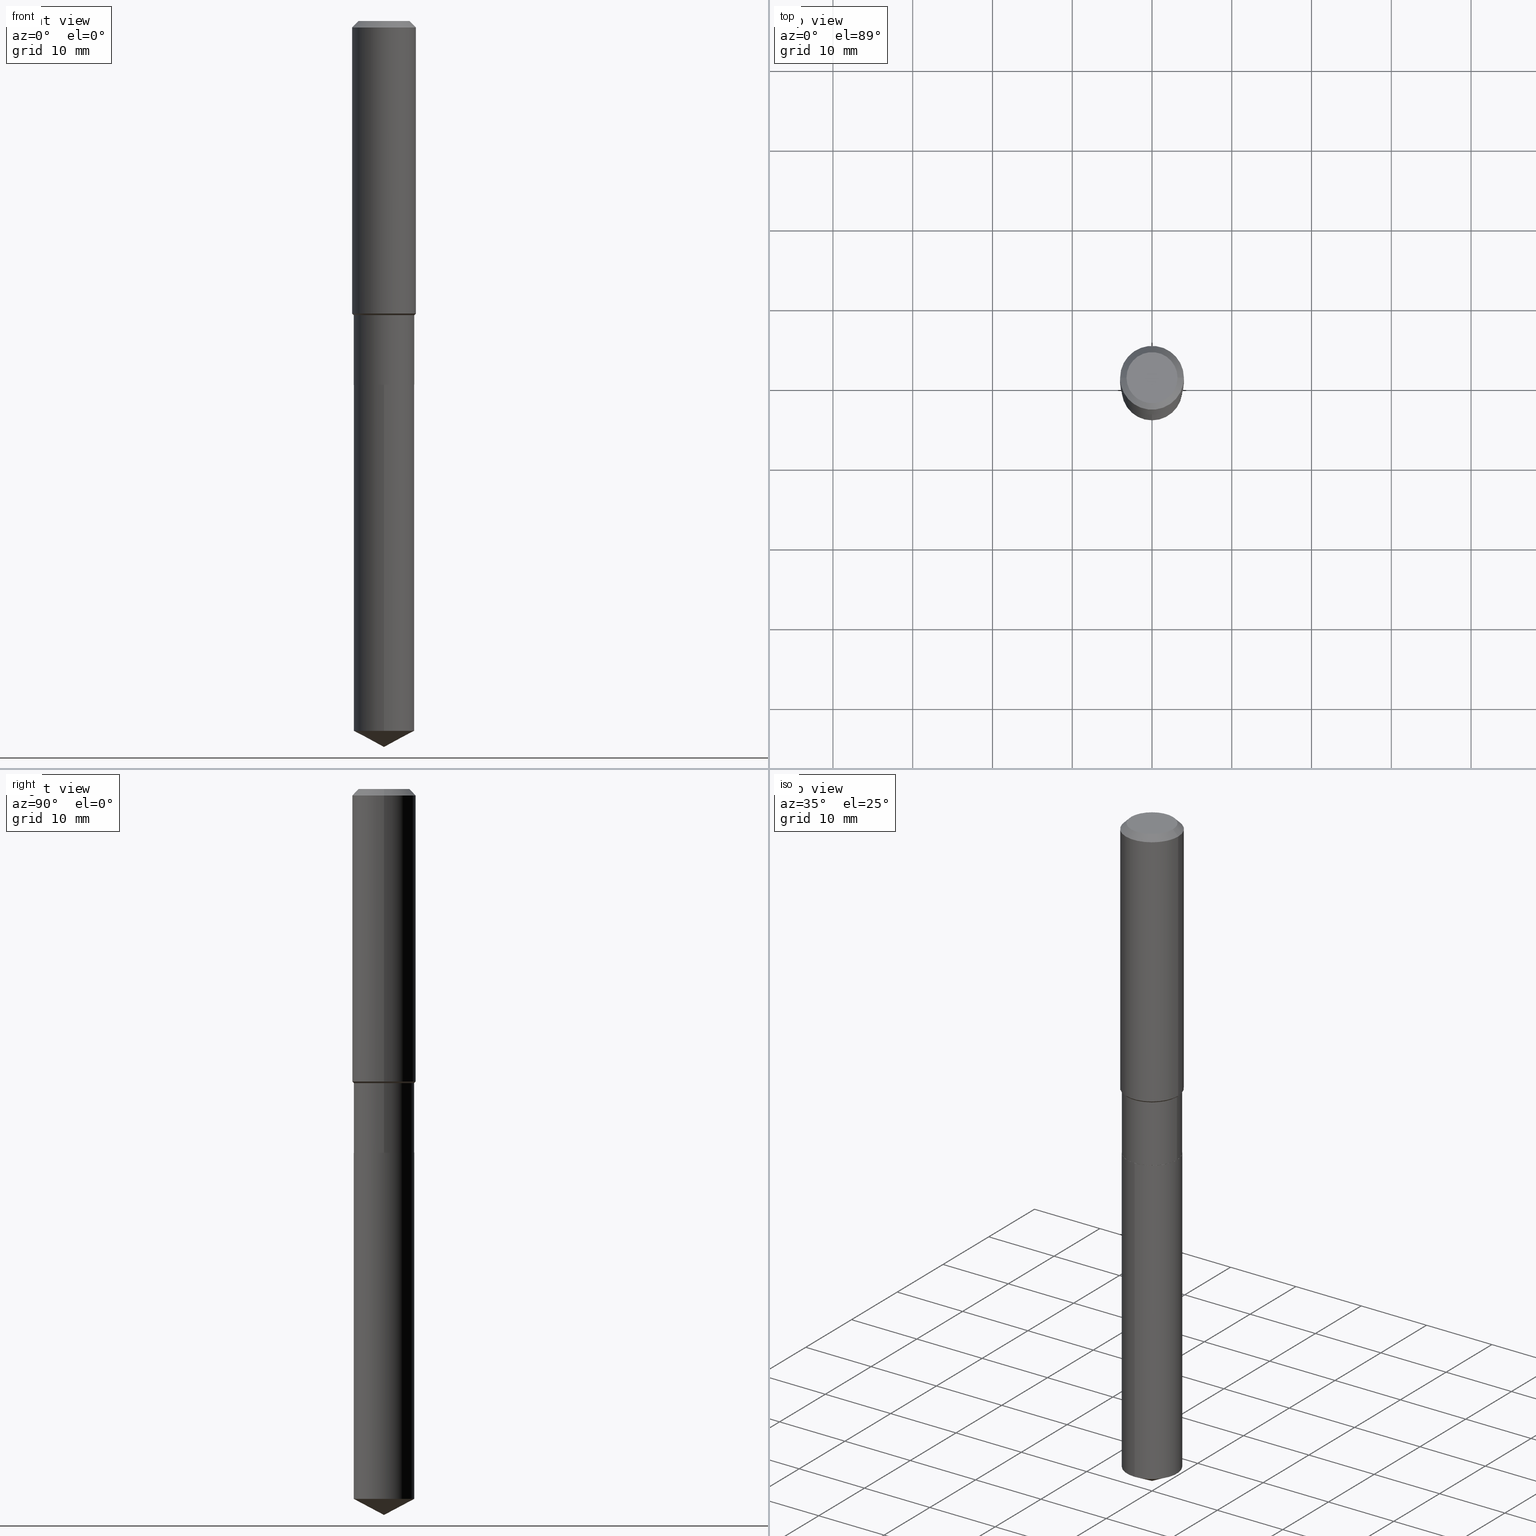
[diagram: canonical four-view strip — front | top / right | iso, engineering-drawing reading convention]
A machine part, canonical four-view strip (front | top / right | iso — engineering-drawing reading convention). The complete STEP part file that produces these views, byte-faithful:
ISO-10303-21;
HEADER;
FILE_DESCRIPTION (( 'STEP AP203' ),
    '1' );
FILE_NAME ('65206.STEP',
    '2024-04-24T21:22:29',
    ( '' ),
    ( '' ),
    'SwSTEP 2.0',
    'SolidWorks 2023',
    '' );
FILE_SCHEMA (( 'CONFIG_CONTROL_DESIGN' ));
ENDSEC;

DATA;
#1 = EDGE_CURVE ( 'NONE', #374, #392, #385, .T. ) ;
#2 = PERSON_AND_ORGANIZATION ( #70, #134 ) ;
#3 = CONICAL_SURFACE ( 'NONE', #340, 74.04434902938376695, 1.082104136236487824 ) ;
#4 = CARTESIAN_POINT ( 'NONE',  ( 0.000000000000000000, 0.000000000000000000, 0.000000000000000000 ) ) ;
#5 = ORIENTED_EDGE ( 'NONE', *, *, #453, .F. ) ;
#6 = VECTOR ( 'NONE', #185, 39.37007874015748143 ) ;
#7 = DIRECTION ( 'NONE',  ( -2.445468806185136597E-29, 3.491481338843145583E-15, 1.000000000000000000 ) ) ;
#8 =( NAMED_UNIT ( * ) SI_UNIT ( $, .STERADIAN. ) SOLID_ANGLE_UNIT ( ) );
#9 = FACE_OUTER_BOUND ( 'NONE', #197, .T. ) ;
#10 = VERTEX_POINT ( 'NONE', #211 ) ;
#11 = CARTESIAN_POINT ( 'NONE',  ( 4.390350147744175670E-29, -6.268256447625099205E-15, -1.795300000000000118 ) ) ;
#12 = VERTEX_POINT ( 'NONE', #420 ) ;
#13 = AXIS2_PLACEMENT_3D ( 'NONE', #109, #160, #396 ) ;
#14 = CARTESIAN_POINT ( 'NONE',  ( 7.703226739483226971E-31, -1.099816621735597538E-16, -0.03150000000000019451 ) ) ;
#15 = EDGE_LOOP ( 'NONE', ( #357, #365, #412, #373 ) ) ;
#16 = CARTESIAN_POINT ( 'NONE',  ( 4.390350147744175670E-29, -6.268256447625099205E-15, -1.795300000000000118 ) ) ;
#17 = CALENDAR_DATE ( 2024, 24, 4 ) ;
#18 = ORIENTED_EDGE ( 'NONE', *, *, #123, .F. ) ;
#19 = FACE_OUTER_BOUND ( 'NONE', #408, .T. ) ;
#20 = EDGE_LOOP ( 'NONE', ( #52, #345, #135, #283 ) ) ;
#21 = CIRCLE ( 'NONE', #332, 0.1575000000000001676 ) ;
#22 = CC_DESIGN_APPROVAL ( #488, ( #257 ) ) ;
#23 = ADVANCED_BREP_SHAPE_REPRESENTATION ( '65206', ( #117, #303, #344 ), #247 ) ;
#24 = DIRECTION ( 'NONE',  ( -2.445468806185136597E-29, 3.491481338843145583E-15, 1.000000000000000000 ) ) ;
#25 = PRODUCT_DEFINITION_SHAPE ( 'NONE', 'NONE',  #223 ) ;
#26 = ADVANCED_FACE ( 'NONE', ( #232 ), #361, .T. ) ;
#27 = PRODUCT ( '65206', '65206', '', ( #460 ) ) ;
#28 = APPROVAL_DATE_TIME ( #260, #40 ) ;
#29 = EDGE_CURVE ( 'NONE', #392, #374, #343, .T. ) ;
#30 = FACE_OUTER_BOUND ( 'NONE', #72, .T. ) ;
#31 = AXIS2_PLACEMENT_3D ( 'NONE', #108, #450, #271 ) ;
#32 = CIRCLE ( 'NONE', #93, 0.1260000000000000009 ) ;
#33 = DIRECTION ( 'NONE',  ( 1.000000000000000000, -6.982962677686262766E-15, 0.000000000000000000 ) ) ;
#34 = CC_DESIGN_PERSON_AND_ORGANIZATION_ASSIGNMENT ( #106, #311, ( #257 ) ) ;
#35 = CARTESIAN_POINT ( 'NONE',  ( 0.000000000000000000, 0.000000000000000000, 0.000000000000000000 ) ) ;
#36 = CIRCLE ( 'NONE', #172, 0.1496000000000000107 ) ;
#37 = ORIENTED_EDGE ( 'NONE', *, *, #29, .T. ) ;
#38 = EDGE_CURVE ( 'NONE', #12, #369, #82, .T. ) ;
#39 = VERTEX_POINT ( 'NONE', #242 ) ;
#40 = APPROVAL ( #398, 'UNSPECIFIED' ) ;
#41 = DIRECTION ( 'NONE',  ( 1.000000000000000000, -6.982962677686267499E-15, 4.876176775795936353E-29 ) ) ;
#42 = FACE_OUTER_BOUND ( 'NONE', #360, .T. ) ;
#43 = VECTOR ( 'NONE', #423, 39.37007874015748143 ) ;
#44 = VECTOR ( 'NONE', #432, 39.37007874015748143 ) ;
#45 = APPROVAL_ROLE ( '' ) ;
#46 = EDGE_CURVE ( 'NONE', #335, #323, #462, .T. ) ;
#47 = CARTESIAN_POINT ( 'NONE',  ( 0.1575000000000000844, -1.099816621735587677E-15, 7.679978421878603638E-30 ) ) ;
#48 = ORIENTED_EDGE ( 'NONE', *, *, #168, .T. ) ;
#49 = EDGE_CURVE ( 'NONE', #119, #156, #36, .T. ) ;
#50 = CARTESIAN_POINT ( 'NONE',  ( 4.389127413341083429E-29, -6.266510706955677702E-15, -1.794800000000000173 ) ) ;
#51 = ORIENTED_EDGE ( 'NONE', *, *, #49, .T. ) ;
#52 = ORIENTED_EDGE ( 'NONE', *, *, #1, .T. ) ;
#53 = VECTOR ( 'NONE', #476, 39.37007874015748143 ) ;
#54 = CIRCLE ( 'NONE', #230, 0.1496000000000000107 ) ;
#55 = CALENDAR_DATE ( 2024, 24, 4 ) ;
#56 = ORIENTED_EDGE ( 'NONE', *, *, #38, .T. ) ;
#57 = ORIENTED_EDGE ( 'NONE', *, *, #397, .F. ) ;
#58 = DIRECTION ( 'NONE',  ( -2.445468806185136597E-29, 3.491481338843145583E-15, 1.000000000000000000 ) ) ;
#59 = DESIGN_CONTEXT ( 'detailed design', #252, 'design' ) ;
#60 = ADVANCED_FACE ( 'NONE', ( #349 ), #390, .T. ) ;
#61 = CONICAL_SURFACE ( 'NONE', #92, 0.1491000000000000103, 0.7853981633975507526 ) ;
#62 = ADVANCED_FACE ( 'NONE', ( #186 ), #61, .T. ) ;
#63 = DIRECTION ( 'NONE',  ( 0.7071067811865452413, -7.319954787623248157E-15, -0.7071067811865497932 ) ) ;
#64 = FACE_OUTER_BOUND ( 'NONE', #20, .T. ) ;
#65 = ADVANCED_FACE ( 'NONE', ( #19 ), #305, .T. ) ;
#66 = CIRCLE ( 'NONE', #459, 0.1496000000000000107 ) ;
#67 = AXIS2_PLACEMENT_3D ( 'NONE', #50, #254, #291 ) ;
#68 = CC_DESIGN_APPROVAL ( #157, ( #223 ) ) ;
#69 = DIRECTION ( 'NONE',  ( -2.445468806185136597E-29, 3.491481338843145583E-15, 1.000000000000000000 ) ) ;
#70 = PERSON ( 'UNSPECIFIED', 'UNSPECIFIED', 'UNSPECIFIED', ('UNSPECIFIED'), ('UNSPECIFIED'), ('UNSPECIFIED') ) ;
#71 = ADVANCED_FACE ( 'NONE', ( #64 ), #393, .T. ) ;
#72 = EDGE_LOOP ( 'NONE', ( #88, #445, #334, #176 ) ) ;
#73 = EDGE_CURVE ( 'NONE', #95, #369, #268, .T. ) ;
#74 = VECTOR ( 'NONE', #219, 39.37007874015748143 ) ;
#75 = DIRECTION ( 'NONE',  ( -2.445468806185136597E-29, 3.491481338843145583E-15, 1.000000000000000000 ) ) ;
#76 = ORIENTED_EDGE ( 'NONE', *, *, #193, .F. ) ;
#77 = DIRECTION ( 'NONE',  ( 1.000000000000000000, -6.982962677686265922E-15, 0.000000000000000000 ) ) ;
#78 = ORIENTED_EDGE ( 'NONE', *, *, #198, .T. ) ;
#79 = ADVANCED_FACE ( 'NONE', ( #132 ), #442, .F. ) ;
#80 = CARTESIAN_POINT ( 'NONE',  ( -1.044651216581821622E-15, -0.1496000000000062835, -1.795299999999999452 ) ) ;
#81 = LINE ( 'NONE', #47, #145 ) ;
#82 = CIRCLE ( 'NONE', #154, 0.1496000000000000107 ) ;
#83 = COORDINATED_UNIVERSAL_TIME_OFFSET ( 5, 0, .BEHIND. ) ;
#84 = ORIENTED_EDGE ( 'NONE', *, *, #448, .T. ) ;
#85 = CARTESIAN_POINT ( 'NONE',  ( -1.044651216581780009E-15, -0.1496000000000122510, -3.503156269023442793 ) ) ;
#86 = ORIENTED_EDGE ( 'NONE', *, *, #431, .T. ) ;
#87 = CARTESIAN_POINT ( 'NONE',  ( 4.390350147744175670E-29, -6.268256447625099205E-15, -1.795300000000000118 ) ) ;
#88 = ORIENTED_EDGE ( 'NONE', *, *, #389, .F. ) ;
#89 = DIRECTION ( 'NONE',  ( -2.445434716319328543E-29, 3.491530157471257192E-15, 1.000000000000000000 ) ) ;
#90 = CIRCLE ( 'NONE', #426, 0.1491000000000000103 ) ;
#91 = ORIENTED_EDGE ( 'NONE', *, *, #453, .T. ) ;
#92 = AXIS2_PLACEMENT_3D ( 'NONE', #99, #227, #138 ) ;
#93 = AXIS2_PLACEMENT_3D ( 'NONE', #203, #284, #377 ) ;
#94 = PERSON_AND_ORGANIZATION ( #70, #134 ) ;
#95 = VERTEX_POINT ( 'NONE', #300 ) ;
#96 = CARTESIAN_POINT ( 'NONE',  ( 3.529545127967007664E-29, -5.039255016352311783E-15, -1.443299999999999805 ) ) ;
#97 = DIRECTION ( 'NONE',  ( -2.445434716319328543E-29, 3.491530157471257586E-15, 1.000000000000000000 ) ) ;
#98 = EDGE_CURVE ( 'NONE', #296, #10, #21, .T. ) ;
#99 = CARTESIAN_POINT ( 'NONE',  ( 4.390350147744175670E-29, -6.268256447625099205E-15, -1.795300000000000118 ) ) ;
#100 = CARTESIAN_POINT ( 'NONE',  ( 1.062971932697195546E-15, 0.1495999999999878260, -3.503156269023444125 ) ) ;
#101 = DIRECTION ( 'NONE',  ( 1.000000000000000000, -6.982962677686266711E-15, 4.876176775795936353E-29 ) ) ;
#102 = DIRECTION ( 'NONE',  ( -2.445468806185136597E-29, 3.491481338843145583E-15, 1.000000000000000000 ) ) ;
#103 = COORDINATED_UNIVERSAL_TIME_OFFSET ( 5, 0, .BEHIND. ) ;
#104 = AXIS2_PLACEMENT_3D ( 'NONE', #147, #256, #215 ) ;
#105 = VECTOR ( 'NONE', #89, 39.37007874015748143 ) ;
#106 = PERSON_AND_ORGANIZATION ( #70, #134 ) ;
#107 = LOCAL_TIME ( 17, 22, 29.00000000000000000, #83 ) ;
#108 = CARTESIAN_POINT ( 'NONE',  ( -4.719860820353100843E-47, 6.738710358733633822E-33, 1.930043355456229866E-18 ) ) ;
#109 = CARTESIAN_POINT ( 'NONE',  ( -8.751563717571329643E-28, 1.249527997721886214E-13, 35.78737874015747877 ) ) ;
#110 = ORIENTED_EDGE ( 'NONE', *, *, #158, .F. ) ;
#111 = EDGE_CURVE ( 'NONE', #369, #12, #356, .T. ) ;
#112 = DIRECTION ( 'NONE',  ( 1.000000000000000000, -6.982962677686267499E-15, 0.000000000000000000 ) ) ;
#113 = AXIS2_PLACEMENT_3D ( 'NONE', #152, #277, #112 ) ;
#114 = CYLINDRICAL_SURFACE ( 'NONE', #280, 0.1496000000000000107 ) ;
#115 = DIRECTION ( 'NONE',  ( -0.7071067811865467956, 7.493145998870351005E-15, 0.7071067811865482389 ) ) ;
#116 = EDGE_CURVE ( 'NONE', #440, #12, #170, .T. ) ;
#117 = MANIFOLD_SOLID_BREP ( 'Body-Move/Copy2[1]', #441 ) ;
#118 = APPROVAL_STATUS ( 'not_yet_approved' ) ;
#119 = VERTEX_POINT ( 'NONE', #245 ) ;
#120 = CARTESIAN_POINT ( 'NONE',  ( -0.1575000000000000011, -1.455513530440777031E-15, -0.03150000000000019451 ) ) ;
#121 = DIRECTION ( 'NONE',  ( -2.445468806185136597E-29, 3.491481338843145583E-15, 1.000000000000000000 ) ) ;
#122 = APPLICATION_PROTOCOL_DEFINITION ( 'international standard', 'config_control_design', 1994, #490 ) ;
#123 = EDGE_CURVE ( 'NONE', #323, #253, #351, .T. ) ;
#124 = DIRECTION ( 'NONE',  ( -2.438088387897960049E-29, 3.491481338843145188E-15, 1.000000000000000000 ) ) ;
#125 = AXIS2_PLACEMENT_3D ( 'NONE', #380, #214, #177 ) ;
#126 = EDGE_LOOP ( 'NONE', ( #255, #371, #207, #438 ) ) ;
#127 = CYLINDRICAL_SURFACE ( 'NONE', #246, 0.1496000000000000107 ) ;
#128 = CARTESIAN_POINT ( 'NONE',  ( -9.439721640706201686E-47, 1.347742071746726764E-32, 3.860086710912459732E-18 ) ) ;
#129 = EDGE_LOOP ( 'NONE', ( #91, #464, #139, #473 ) ) ;
#130 = ORIENTED_EDGE ( 'NONE', *, *, #1, .F. ) ;
#131 = ADVANCED_FACE ( 'NONE', ( #9 ), #465, .F. ) ;
#132 = FACE_OUTER_BOUND ( 'NONE', #355, .T. ) ;
#133 = DIRECTION ( 'NONE',  ( -2.445468806185136597E-29, 3.491481338843145583E-15, 1.000000000000000000 ) ) ;
#134 = ORGANIZATION ( 'UNSPECIFIED', 'UNSPECIFIED', '' ) ;
#135 = ORIENTED_EDGE ( 'NONE', *, *, #187, .F. ) ;
#136 = CIRCLE ( 'NONE', #113, 0.1575000000000001676 ) ;
#137 = AXIS2_PLACEMENT_3D ( 'NONE', #16, #221, #417 ) ;
#138 = DIRECTION ( 'NONE',  ( 1.000000000000000000, -6.982962677686265133E-15, 0.000000000000000000 ) ) ;
#139 = ORIENTED_EDGE ( 'NONE', *, *, #458, .F. ) ;
#140 = ADVANCED_FACE ( 'NONE', ( #159 ), #307, .T. ) ;
#141 = DIRECTION ( 'NONE',  ( 0.000000000000000000, 0.000000000000000000, 1.000000000000000000 ) ) ;
#142 = CARTESIAN_POINT ( 'NONE',  ( 0.1575000000000000011, -1.190510096822576026E-15, -0.03150000000000019451 ) ) ;
#143 = APPROVAL_STATUS ( 'not_yet_approved' ) ;
#144 = AXIS2_PLACEMENT_3D ( 'NONE', #35, #196, #263 ) ;
#145 = VECTOR ( 'NONE', #204, 39.37007874015748143 ) ;
#146 = CARTESIAN_POINT ( 'NONE',  ( 0.000000000000000000, 0.000000000000000000, 0.000000000000000000 ) ) ;
#147 = CARTESIAN_POINT ( 'NONE',  ( 7.703226739483226971E-31, -1.099816621735597538E-16, -0.03150000000000019451 ) ) ;
#148 = CARTESIAN_POINT ( 'NONE',  ( -0.1575000000000000844, 1.119104808822158392E-15, -7.747322767151481189E-30 ) ) ;
#149 = PERSON_AND_ORGANIZATION ( #70, #134 ) ;
#150 = CC_DESIGN_PERSON_AND_ORGANIZATION_ASSIGNMENT ( #2, #312, ( #401 ) ) ;
#151 = FACE_OUTER_BOUND ( 'NONE', #126, .T. ) ;
#152 = CARTESIAN_POINT ( 'NONE',  ( 3.529545127967007664E-29, -5.039255016352311783E-15, -1.443299999999999805 ) ) ;
#153 = FACE_OUTER_BOUND ( 'NONE', #129, .T. ) ;
#154 = AXIS2_PLACEMENT_3D ( 'NONE', #286, #7, #250 ) ;
#155 = CALENDAR_DATE ( 2024, 24, 4 ) ;
#156 = VERTEX_POINT ( 'NONE', #388 ) ;
#157 = APPROVAL ( #118, 'UNSPECIFIED' ) ;
#158 = EDGE_CURVE ( 'NONE', #392, #296, #456, .T. ) ;
#159 = FACE_OUTER_BOUND ( 'NONE', #425, .T. ) ;
#160 = DIRECTION ( 'NONE',  ( -2.445434716319328543E-29, 3.491530157471257586E-15, 1.000000000000000000 ) ) ;
#161 = VECTOR ( 'NONE', #63, 39.37007874015748143 ) ;
#162 = AXIS2_PLACEMENT_3D ( 'NONE', #11, #124, #435 ) ;
#163 = AXIS2_PLACEMENT_3D ( 'NONE', #463, #121, #446 ) ;
#164 = PRODUCT_RELATED_PRODUCT_CATEGORY ( 'detail', '', ( #27 ) ) ;
#165 = DIRECTION ( 'NONE',  ( -6.982962677686265922E-15, -1.000000000000000000, 3.652203200085913145E-15 ) ) ;
#166 = ORIENTED_EDGE ( 'NONE', *, *, #217, .T. ) ;
#167 = DIRECTION ( 'NONE',  ( -2.445468806185136877E-29, 3.491481338843145188E-15, 1.000000000000000000 ) ) ;
#168 = EDGE_CURVE ( 'NONE', #12, #392, #282, .T. ) ;
#169 = VERTEX_POINT ( 'NONE', #120 ) ;
#170 = LINE ( 'NONE', #367, #44 ) ;
#171 = ORIENTED_EDGE ( 'NONE', *, *, #266, .T. ) ;
#172 = AXIS2_PLACEMENT_3D ( 'NONE', #325, #235, #190 ) ;
#173 = ORIENTED_EDGE ( 'NONE', *, *, #29, .F. ) ;
#174 = ORIENTED_EDGE ( 'NONE', *, *, #73, .F. ) ;
#175 = DATE_AND_TIME ( #17, #315 ) ;
#176 = ORIENTED_EDGE ( 'NONE', *, *, #448, .F. ) ;
#177 = DIRECTION ( 'NONE',  ( 1.000000000000000000, -6.982962677686262766E-15, 0.000000000000000000 ) ) ;
#178 = CARTESIAN_POINT ( 'NONE',  ( 1.062971932697153933E-15, 0.1495999999999937657, -1.795300000000000562 ) ) ;
#179 = PERSON_AND_ORGANIZATION ( #70, #134 ) ;
#180 = LOCAL_TIME ( 17, 22, 29.00000000000000000, #477 ) ;
#181 = ORIENTED_EDGE ( 'NONE', *, *, #279, .F. ) ;
#182 = CIRCLE ( 'NONE', #224, 0.1575000000000000011 ) ;
#183 = ADVANCED_FACE ( 'NONE', ( #237 ), #422, .T. ) ;
#184 = PERSON_AND_ORGANIZATION_ROLE ( 'design_owner' ) ;
#185 = DIRECTION ( 'NONE',  ( -2.445468806185136877E-29, 3.491481338843145188E-15, 1.000000000000000000 ) ) ;
#186 = FACE_OUTER_BOUND ( 'NONE', #295, .T. ) ;
#187 = EDGE_CURVE ( 'NONE', #10, #296, #136, .T. ) ;
#188 = AXIS2_PLACEMENT_3D ( 'NONE', #318, #234, #424 ) ;
#189 = ADVANCED_FACE ( 'NONE', ( #42 ), #200, .F. ) ;
#190 = DIRECTION ( 'NONE',  ( -6.982962677686265922E-15, -1.000000000000000000, 3.652203200085913145E-15 ) ) ;
#191 = CALENDAR_DATE ( 2024, 24, 4 ) ;
#192 = EDGE_LOOP ( 'NONE', ( #181, #319, #171, #330 ) ) ;
#193 = EDGE_CURVE ( 'NONE', #335, #253, #274, .T. ) ;
#194 = CARTESIAN_POINT ( 'NONE',  ( -0.1495999999999999830, -4.003865786232063558E-15, -1.451200000000000045 ) ) ;
#195 = VECTOR ( 'NONE', #115, 39.37007874015748143 ) ;
#196 = DIRECTION ( 'NONE',  ( -2.445468806185136597E-29, 3.491481338843145583E-15, 1.000000000000000000 ) ) ;
#197 = EDGE_LOOP ( 'NONE', ( #212, #414 ) ) ;
#198 = EDGE_CURVE ( 'NONE', #374, #10, #275, .T. ) ;
#199 = CARTESIAN_POINT ( 'NONE',  ( -0.1575000000000000011, 9.898349595620272334E-16, -0.03150000000000019451 ) ) ;
#200 = PLANE ( 'NONE',  #31 ) ;
#201 = CC_DESIGN_APPROVAL ( #40, ( #401 ) ) ;
#202 = CARTESIAN_POINT ( 'NONE',  ( 7.703226739483226971E-31, -1.099816621735597538E-16, -0.03150000000000019451 ) ) ;
#203 = CARTESIAN_POINT ( 'NONE',  ( -9.439721640706201686E-47, 1.347742071746726764E-32, 3.860086710912459732E-18 ) ) ;
#204 = DIRECTION ( 'NONE',  ( -2.445468806185136877E-29, 3.491481338843145188E-15, 1.000000000000000000 ) ) ;
#205 = ORIENTED_EDGE ( 'NONE', *, *, #397, .T. ) ;
#206 = CARTESIAN_POINT ( 'NONE',  ( 0.1495999999999999830, -1.044651216581865404E-15, 7.294760456590720327E-30 ) ) ;
#207 = ORIENTED_EDGE ( 'NONE', *, *, #304, .F. ) ;
#208 = CARTESIAN_POINT ( 'NONE',  ( 8.566801158497707259E-29, -1.223128811554679691E-14, -3.503156269023443237 ) ) ;
#209 = AXIS2_PLACEMENT_3D ( 'NONE', #410, #475, #294 ) ;
#210 = VECTOR ( 'NONE', #430, 39.37007874015748143 ) ;
#211 = CARTESIAN_POINT ( 'NONE',  ( 0.1575000000000001676, -6.139071638087900053E-15, -1.443299999999999805 ) ) ;
#212 = ORIENTED_EDGE ( 'NONE', *, *, #352, .F. ) ;
#213 = CARTESIAN_POINT ( 'NONE',  ( -0.1491000000000000103, -5.206188001432678554E-15, -1.795300000000000118 ) ) ;
#214 = DIRECTION ( 'NONE',  ( -2.445468806185136597E-29, 3.491481338843145583E-15, 1.000000000000000000 ) ) ;
#215 = DIRECTION ( 'NONE',  ( -1.000000000000000000, 6.982962677686265922E-15, 0.000000000000000000 ) ) ;
#216 = CARTESIAN_POINT ( 'NONE',  ( 0.1260000000000000009, -1.027466422270894443E-15, 3.860086710919128072E-18 ) ) ;
#217 = EDGE_CURVE ( 'NONE', #10, #338, #81, .T. ) ;
#218 = APPLICATION_PROTOCOL_DEFINITION ( 'international standard', 'config_control_design', 1994, #252 ) ;
#219 = DIRECTION ( 'NONE',  ( 0.7071067811865467956, -2.468850131082249172E-15, 0.7071067811865482389 ) ) ;
#220 = EDGE_LOOP ( 'NONE', ( #461, #484, #18 ) ) ;
#221 = DIRECTION ( 'NONE',  ( -2.445468806185136597E-29, 3.491481338843145583E-15, 1.000000000000000000 ) ) ;
#222 = ORIENTED_EDGE ( 'NONE', *, *, #111, .F. ) ;
#223 = PRODUCT_DEFINITION ( 'UNKNOWN', '', #401, #59 ) ;
#224 = AXIS2_PLACEMENT_3D ( 'NONE', #14, #69, #236 ) ;
#225 = CARTESIAN_POINT ( 'NONE',  ( 4.390350147744175670E-29, -6.268256447625099205E-15, -1.795300000000000118 ) ) ;
#226 = DIRECTION ( 'NONE',  ( 1.000000000000000000, -6.982962677686265133E-15, 0.000000000000000000 ) ) ;
#227 = DIRECTION ( 'NONE',  ( -2.445468806185136597E-29, 3.491481338843145583E-15, 1.000000000000000000 ) ) ;
#228 = CARTESIAN_POINT ( 'NONE',  ( 0.1496000000000000107, -7.311161923537544091E-15, -1.794800000000000173 ) ) ;
#229 = DIRECTION ( 'NONE',  ( -6.982962677686265922E-15, -1.000000000000000000, 3.541896320645549825E-15 ) ) ;
#230 = AXIS2_PLACEMENT_3D ( 'NONE', #301, #483, #165 ) ;
#231 = CIRCLE ( 'NONE', #321, 0.1575000000000000011 ) ;
#232 = FACE_OUTER_BOUND ( 'NONE', #15, .T. ) ;
#233 = DATE_AND_TIME ( #191, #244 ) ;
#234 = DIRECTION ( 'NONE',  ( -2.445468806185136597E-29, 3.491481338843145583E-15, 1.000000000000000000 ) ) ;
#235 = DIRECTION ( 'NONE',  ( -2.445434716319328543E-29, 3.491530157471257586E-15, 1.000000000000000000 ) ) ;
#236 = DIRECTION ( 'NONE',  ( 1.000000000000000000, -6.982962677686265922E-15, 0.000000000000000000 ) ) ;
#237 = FACE_OUTER_BOUND ( 'NONE', #292, .T. ) ;
#238 = VECTOR ( 'NONE', #391, 39.37007874015748854 ) ;
#239 =( CONVERSION_BASED_UNIT ( 'INCH', #262 ) LENGTH_UNIT ( ) NAMED_UNIT ( #269 ) );
#240 = ORIENTED_EDGE ( 'NONE', *, *, #486, .T. ) ;
#241 = ORIENTED_EDGE ( 'NONE', *, *, #116, .T. ) ;
#242 = CARTESIAN_POINT ( 'NONE',  ( -0.1260000000000000009, 9.348441284752484904E-16, 3.860086710906114178E-18 ) ) ;
#243 = PERSON_AND_ORGANIZATION ( #70, #134 ) ;
#244 = LOCAL_TIME ( 17, 22, 29.00000000000000000, #103 ) ;
#245 = CARTESIAN_POINT ( 'NONE',  ( 1.062971932697195743E-15, 0.1495999999999937102, -1.795300000000000562 ) ) ;
#246 = AXIS2_PLACEMENT_3D ( 'NONE', #87, #97, #411 ) ;
#247 =( GEOMETRIC_REPRESENTATION_CONTEXT ( 3 ) GLOBAL_UNCERTAINTY_ASSIGNED_CONTEXT ( ( #339 ) ) GLOBAL_UNIT_ASSIGNED_CONTEXT ( ( #239, #359, #8 ) ) REPRESENTATION_CONTEXT ( 'NONE', 'WORKASPACE' ) );
#248 = CYLINDRICAL_SURFACE ( 'NONE', #273, 0.1575000000000000844 ) ;
#249 = ORIENTED_EDGE ( 'NONE', *, *, #168, .F. ) ;
#250 = DIRECTION ( 'NONE',  ( 1.000000000000000000, -6.982962677686268288E-15, 0.000000000000000000 ) ) ;
#251 = CC_DESIGN_DATE_AND_TIME_ASSIGNMENT ( #175, #337, ( #223 ) ) ;
#252 = APPLICATION_CONTEXT ( 'configuration controlled 3d designs of mechanical parts and assemblies' ) ;
#253 = VERTEX_POINT ( 'NONE', #85 ) ;
#254 = DIRECTION ( 'NONE',  ( -2.445468806185136597E-29, 3.491481338843145583E-15, 1.000000000000000000 ) ) ;
#255 = ORIENTED_EDGE ( 'NONE', *, *, #187, .T. ) ;
#256 = DIRECTION ( 'NONE',  ( 2.445468806185136597E-29, -3.491481338843145583E-15, -1.000000000000000000 ) ) ;
#257 = SECURITY_CLASSIFICATION ( '', '', #418 ) ;
#258 = ORIENTED_EDGE ( 'NONE', *, *, #389, .T. ) ;
#259 = CARTESIAN_POINT ( 'NONE',  ( 4.390350147744175670E-29, -6.268256447625099205E-15, -1.795300000000000118 ) ) ;
#260 = DATE_AND_TIME ( #298, #180 ) ;
#261 = ORIENTED_EDGE ( 'NONE', *, *, #431, .F. ) ;
#262 = LENGTH_MEASURE_WITH_UNIT ( LENGTH_MEASURE( 0.02539999999999999897 ), #327 );
#263 = DIRECTION ( 'NONE',  ( 1.000000000000000000, -6.982962677686266711E-15, 4.876176775795936353E-29 ) ) ;
#264 = PERSON_AND_ORGANIZATION ( #70, #134 ) ;
#265 = AXIS2_PLACEMENT_3D ( 'NONE', #259, #341, #481 ) ;
#266 = EDGE_CURVE ( 'NONE', #253, #156, #406, .T. ) ;
#267 = DIRECTION ( 'NONE',  ( -2.445434716319328543E-29, 3.491530157471257586E-15, 1.000000000000000000 ) ) ;
#268 = LINE ( 'NONE', #336, #53 ) ;
#269 = DIMENSIONAL_EXPONENTS ( 1.000000000000000000, 0.000000000000000000, 0.000000000000000000, 0.000000000000000000, 0.000000000000000000, 0.000000000000000000, 0.000000000000000000 ) ;
#270 = PERSON_AND_ORGANIZATION_ROLE ( 'design_supplier' ) ;
#271 = DIRECTION ( 'NONE',  ( -1.000000000000000000, 6.982962677686265922E-15, -4.876176775795935793E-29 ) ) ;
#272 = CC_DESIGN_SECURITY_CLASSIFICATION ( #257, ( #401 ) ) ;
#273 = AXIS2_PLACEMENT_3D ( 'NONE', #395, #133, #41 ) ;
#274 = LINE ( 'NONE', #387, #238 ) ;
#275 = LINE ( 'NONE', #278, #74 ) ;
#276 = VERTEX_POINT ( 'NONE', #216 ) ;
#277 = DIRECTION ( 'NONE',  ( -2.445468806185136597E-29, 3.491481338843145583E-15, 1.000000000000000000 ) ) ;
#278 = CARTESIAN_POINT ( 'NONE',  ( 0.1495999999999999830, -6.111488935511037930E-15, -1.451200000000000045 ) ) ;
#279 = EDGE_CURVE ( 'NONE', #323, #119, #471, .T. ) ;
#280 = AXIS2_PLACEMENT_3D ( 'NONE', #485, #403, #447 ) ;
#281 = CC_DESIGN_PERSON_AND_ORGANIZATION_ASSIGNMENT ( #94, #347, ( #223 ) ) ;
#282 = LINE ( 'NONE', #353, #457 ) ;
#283 = ORIENTED_EDGE ( 'NONE', *, *, #198, .F. ) ;
#284 = DIRECTION ( 'NONE',  ( -2.445468806185136597E-29, 3.491481338843145583E-15, 1.000000000000000000 ) ) ;
#285 = ADVANCED_FACE ( 'NONE', ( #329 ), #127, .T. ) ;
#286 = CARTESIAN_POINT ( 'NONE',  ( 4.389127413341083429E-29, -6.266510706955677702E-15, -1.794800000000000173 ) ) ;
#287 = DIRECTION ( 'NONE',  ( -2.445468806185136597E-29, 3.491481338843145583E-15, 1.000000000000000000 ) ) ;
#288 = DIRECTION ( 'NONE',  ( 2.445468806185136597E-29, -3.491481338843145583E-15, -1.000000000000000000 ) ) ;
#289 = APPROVAL_DATE_TIME ( #364, #157 ) ;
#290 = CC_DESIGN_DATE_AND_TIME_ASSIGNMENT ( #354, #350, ( #257 ) ) ;
#291 = DIRECTION ( 'NONE',  ( 1.000000000000000000, -6.982962677686268288E-15, 0.000000000000000000 ) ) ;
#292 = EDGE_LOOP ( 'NONE', ( #76, #468, #5 ) ) ;
#293 = DIRECTION ( 'NONE',  ( -6.982962677686266711E-15, -1.000000000000000000, 3.652203200085913145E-15 ) ) ;
#294 = DIRECTION ( 'NONE',  ( 1.000000000000000000, -6.982962677686265133E-15, 0.000000000000000000 ) ) ;
#295 = EDGE_LOOP ( 'NONE', ( #299, #241, #222, #174 ) ) ;
#296 = VERTEX_POINT ( 'NONE', #416 ) ;
#297 = CIRCLE ( 'NONE', #382, 0.1260000000000000009 ) ;
#298 = CALENDAR_DATE ( 2024, 24, 4 ) ;
#299 = ORIENTED_EDGE ( 'NONE', *, *, #352, .T. ) ;
#300 = CARTESIAN_POINT ( 'NONE',  ( 0.1491000000000000103, -7.309416182868121799E-15, -1.795300000000000118 ) ) ;
#301 = CARTESIAN_POINT ( 'NONE',  ( 4.390350147744175670E-29, -6.268256447625099205E-15, -1.795300000000000118 ) ) ;
#302 = FACE_OUTER_BOUND ( 'NONE', #407, .T. ) ;
#303 = MANIFOLD_SOLID_BREP ( 'Body-Move/Copy2[2]', #376 ) ;
#304 = EDGE_CURVE ( 'NONE', #338, #169, #182, .T. ) ;
#305 = CYLINDRICAL_SURFACE ( 'NONE', #316, 0.1495999999999999830 ) ;
#306 = APPROVAL_DATE_TIME ( #233, #488 ) ;
#307 = CONICAL_SURFACE ( 'NONE', #188, 0.1495999999999999830, 0.7853981633974472798 ) ;
#308 = CARTESIAN_POINT ( 'NONE',  ( -8.751563717571329643E-28, 1.249527997721886214E-13, 35.78737874015747877 ) ) ;
#309 = LINE ( 'NONE', #142, #161 ) ;
#310 = DIRECTION ( 'NONE',  ( -2.445468806185136597E-29, 3.491481338843145583E-15, 1.000000000000000000 ) ) ;
#311 = PERSON_AND_ORGANIZATION_ROLE ( 'classification_officer' ) ;
#312 = PERSON_AND_ORGANIZATION_ROLE ( 'creator' ) ;
#313 = EDGE_LOOP ( 'NONE', ( #402, #57, #84, #240 ) ) ;
#314 = ADVANCED_FACE ( 'NONE', ( #151 ), #429, .T. ) ;
#315 = LOCAL_TIME ( 17, 22, 29.00000000000000000, #433 ) ;
#316 = AXIS2_PLACEMENT_3D ( 'NONE', #146, #310, #101 ) ;
#317 = APPROVAL_PERSON_ORGANIZATION ( #264, #488, #381 ) ;
#318 = CARTESIAN_POINT ( 'NONE',  ( 3.548864331535870340E-29, -5.066837718929173118E-15, -1.451200000000000045 ) ) ;
#319 = ORIENTED_EDGE ( 'NONE', *, *, #123, .T. ) ;
#320 = VECTOR ( 'NONE', #482, 39.37007874015748143 ) ;
#321 = AXIS2_PLACEMENT_3D ( 'NONE', #202, #24, #77 ) ;
#322 = DIRECTION ( 'NONE',  ( 1.000000000000000000, 0.000000000000000000, 0.000000000000000000 ) ) ;
#323 = VERTEX_POINT ( 'NONE', #100 ) ;
#324 = DIRECTION ( 'NONE',  ( 1.000000000000000000, -6.982962677686267499E-15, 0.000000000000000000 ) ) ;
#325 = CARTESIAN_POINT ( 'NONE',  ( 4.390350147744175670E-29, -6.268256447625099205E-15, -1.795300000000000118 ) ) ;
#326 = FACE_OUTER_BOUND ( 'NONE', #313, .T. ) ;
#327 =( LENGTH_UNIT ( ) NAMED_UNIT ( * ) SI_UNIT ( $, .METRE. ) );
#328 = ADVANCED_FACE ( 'NONE', ( #378 ), #3, .T. ) ;
#329 = FACE_OUTER_BOUND ( 'NONE', #192, .T. ) ;
#330 = ORIENTED_EDGE ( 'NONE', *, *, #49, .F. ) ;
#331 = DIRECTION ( 'NONE',  ( 6.273719981627770021E-15, 0.8829475928589302081, 0.4694715627858845886 ) ) ;
#332 = AXIS2_PLACEMENT_3D ( 'NONE', #96, #415, #324 ) ;
#333 = CARTESIAN_POINT ( 'NONE',  ( 7.703226739483226971E-31, -1.099816621735597538E-16, -0.03150000000000019451 ) ) ;
#334 = ORIENTED_EDGE ( 'NONE', *, *, #304, .T. ) ;
#335 = VERTEX_POINT ( 'NONE', #421 ) ;
#336 = CARTESIAN_POINT ( 'NONE',  ( 0.1491000000000000103, -7.309416182868121799E-15, -1.795300000000000118 ) ) ;
#337 = DATE_TIME_ROLE ( 'creation_date' ) ;
#338 = VERTEX_POINT ( 'NONE', #427 ) ;
#339 = UNCERTAINTY_MEASURE_WITH_UNIT (LENGTH_MEASURE( 1.000000000000000082E-05 ), #239, 'distance_accuracy_value', 'NONE');
#340 = AXIS2_PLACEMENT_3D ( 'NONE', #308, #267, #229 ) ;
#341 = DIRECTION ( 'NONE',  ( 2.445434716319328263E-29, -3.491530157471257192E-15, -1.000000000000000000 ) ) ;
#342 = APPROVAL_ROLE ( '' ) ;
#343 = CIRCLE ( 'NONE', #419, 0.1495999999999999830 ) ;
#344 = AXIS2_PLACEMENT_3D ( 'NONE', #4, #141, #322 ) ;
#345 = ORIENTED_EDGE ( 'NONE', *, *, #158, .T. ) ;
#346 = EDGE_CURVE ( 'NONE', #440, #95, #479, .T. ) ;
#347 = PERSON_AND_ORGANIZATION_ROLE ( 'creator' ) ;
#348 = CARTESIAN_POINT ( 'NONE',  ( 0.1495999999999999830, -6.111488935511037930E-15, -1.451200000000000045 ) ) ;
#349 = FACE_OUTER_BOUND ( 'NONE', #437, .T. ) ;
#350 = DATE_TIME_ROLE ( 'classification_date' ) ;
#351 = CIRCLE ( 'NONE', #409, 0.1496000000000000107 ) ;
#352 = EDGE_CURVE ( 'NONE', #95, #440, #90, .T. ) ;
#353 = CARTESIAN_POINT ( 'NONE',  ( -0.1495999999999999830, 1.062971932697109757E-15, -7.358726895021338760E-30 ) ) ;
#354 = DATE_AND_TIME ( #155, #451 ) ;
#355 = EDGE_LOOP ( 'NONE', ( #478, #51 ) ) ;
#356 = CIRCLE ( 'NONE', #67, 0.1496000000000000107 ) ;
#357 = ORIENTED_EDGE ( 'NONE', *, *, #116, .F. ) ;
#358 = CARTESIAN_POINT ( 'NONE',  ( 3.548864331535870340E-29, -5.066837718929173118E-15, -1.451200000000000045 ) ) ;
#359 =( NAMED_UNIT ( * ) PLANE_ANGLE_UNIT ( ) SI_UNIT ( $, .RADIAN. ) );
#360 = EDGE_LOOP ( 'NONE', ( #205, #258 ) ) ;
#361 = CONICAL_SURFACE ( 'NONE', #209, 0.1491000000000000103, 0.7853981633975507526 ) ;
#362 = APPROVAL_PERSON_ORGANIZATION ( #243, #40, #45 ) ;
#363 = EDGE_CURVE ( 'NONE', #296, #169, #379, .T. ) ;
#364 = DATE_AND_TIME ( #55, #107 ) ;
#365 = ORIENTED_EDGE ( 'NONE', *, *, #346, .T. ) ;
#366 = EDGE_CURVE ( 'NONE', #276, #338, #309, .T. ) ;
#367 = CARTESIAN_POINT ( 'NONE',  ( -0.1491000000000000103, -5.208837228606789755E-15, -1.795300000000000118 ) ) ;
#368 = ORIENTED_EDGE ( 'NONE', *, *, #111, .T. ) ;
#369 = VERTEX_POINT ( 'NONE', #228 ) ;
#370 = DIRECTION ( 'NONE',  ( -1.000000000000000000, 6.982962677686265922E-15, 0.000000000000000000 ) ) ;
#371 = ORIENTED_EDGE ( 'NONE', *, *, #363, .T. ) ;
#372 = DIRECTION ( 'NONE',  ( -2.445434716319328543E-29, 3.491530157471257586E-15, 1.000000000000000000 ) ) ;
#373 = ORIENTED_EDGE ( 'NONE', *, *, #38, .F. ) ;
#374 = VERTEX_POINT ( 'NONE', #348 ) ;
#375 = CC_DESIGN_PERSON_AND_ORGANIZATION_ASSIGNMENT ( #487, #184, ( #27 ) ) ;
#376 = CLOSED_SHELL ( 'NONE', ( #62, #428, #314, #71, #65, #60, #140, #474, #383, #189, #131, #26 ) ) ;
#377 = DIRECTION ( 'NONE',  ( 1.000000000000000000, -6.982962677686265922E-15, 4.876281427513067258E-29 ) ) ;
#378 = FACE_OUTER_BOUND ( 'NONE', #220, .T. ) ;
#379 = LINE ( 'NONE', #148, #6 ) ;
#380 = CARTESIAN_POINT ( 'NONE',  ( 3.548864331535870340E-29, -5.066837718929173118E-15, -1.451200000000000045 ) ) ;
#381 = APPROVAL_ROLE ( '' ) ;
#382 = AXIS2_PLACEMENT_3D ( 'NONE', #128, #58, #469 ) ;
#383 = ADVANCED_FACE ( 'NONE', ( #326 ), #489, .T. ) ;
#384 = SHAPE_DEFINITION_REPRESENTATION ( #25, #23 ) ;
#385 = CIRCLE ( 'NONE', #470, 0.1495999999999999830 ) ;
#386 = APPROVAL_PERSON_ORGANIZATION ( #179, #157, #342 ) ;
#387 = CARTESIAN_POINT ( 'NONE',  ( 8.761258958157257730E-29, -1.250910509517227415E-14, -3.582699999999999996 ) ) ;
#388 = CARTESIAN_POINT ( 'NONE',  ( -1.044651216581821425E-15, -0.1496000000000062835, -1.795299999999999452 ) ) ;
#389 = EDGE_CURVE ( 'NONE', #276, #39, #297, .T. ) ;
#390 = CYLINDRICAL_SURFACE ( 'NONE', #144, 0.1495999999999999830 ) ;
#391 = DIRECTION ( 'NONE',  ( -6.165590087286839185E-15, -0.8829475928589269884, 0.4694715627858908058 ) ) ;
#392 = VERTEX_POINT ( 'NONE', #467 ) ;
#393 = CONICAL_SURFACE ( 'NONE', #125, 0.1495999999999999830, 0.7853981633974472798 ) ;
#394 = ORIENTED_EDGE ( 'NONE', *, *, #98, .T. ) ;
#395 = CARTESIAN_POINT ( 'NONE',  ( 0.000000000000000000, 0.000000000000000000, 0.000000000000000000 ) ) ;
#396 = DIRECTION ( 'NONE',  ( -6.982962677686265922E-15, -1.000000000000000000, 3.541896320645549825E-15 ) ) ;
#397 = EDGE_CURVE ( 'NONE', #39, #276, #32, .T. ) ;
#398 = APPROVAL_STATUS ( 'not_yet_approved' ) ;
#399 = DIRECTION ( 'NONE',  ( -2.445434716319328543E-29, 3.491530157471257586E-15, 1.000000000000000000 ) ) ;
#400 = CC_DESIGN_PERSON_AND_ORGANIZATION_ASSIGNMENT ( #149, #270, ( #401 ) ) ;
#401 = PRODUCT_DEFINITION_FORMATION_WITH_SPECIFIED_SOURCE ( 'ANY', '', #27, .NOT_KNOWN. ) ;
#402 = ORIENTED_EDGE ( 'NONE', *, *, #366, .F. ) ;
#403 = DIRECTION ( 'NONE',  ( -2.445434716319328543E-29, 3.491530157471257586E-15, 1.000000000000000000 ) ) ;
#404 = CARTESIAN_POINT ( 'NONE',  ( 8.761382434559886259E-29, -1.250892980700617539E-14, -3.582699999999999996 ) ) ;
#405 = LINE ( 'NONE', #206, #43 ) ;
#406 = LINE ( 'NONE', #80, #105 ) ;
#407 = EDGE_LOOP ( 'NONE', ( #434, #394, #166, #454 ) ) ;
#408 = EDGE_LOOP ( 'NONE', ( #368, #48, #130, #261 ) ) ;
#409 = AXIS2_PLACEMENT_3D ( 'NONE', #208, #399, #293 ) ;
#410 = CARTESIAN_POINT ( 'NONE',  ( 4.390350147744175670E-29, -6.268256447625099205E-15, -1.795300000000000118 ) ) ;
#411 = DIRECTION ( 'NONE',  ( -6.982962677686266711E-15, -1.000000000000000000, 3.652203200085913145E-15 ) ) ;
#412 = ORIENTED_EDGE ( 'NONE', *, *, #73, .T. ) ;
#413 = CARTESIAN_POINT ( 'NONE',  ( 8.566801158497707259E-29, -1.223128811554679691E-14, -3.503156269023443237 ) ) ;
#414 = ORIENTED_EDGE ( 'NONE', *, *, #346, .F. ) ;
#415 = DIRECTION ( 'NONE',  ( -2.445468806185136597E-29, 3.491481338843145583E-15, 1.000000000000000000 ) ) ;
#416 = CARTESIAN_POINT ( 'NONE',  ( -0.1575000000000001676, -3.920150207530152602E-15, -1.443299999999999805 ) ) ;
#417 = DIRECTION ( 'NONE',  ( 1.000000000000000000, -6.982962677686265133E-15, 0.000000000000000000 ) ) ;
#418 = SECURITY_CLASSIFICATION_LEVEL ( 'unclassified' ) ;
#419 = AXIS2_PLACEMENT_3D ( 'NONE', #466, #287, #436 ) ;
#420 = CARTESIAN_POINT ( 'NONE',  ( -0.1496000000000000107, -4.603702280245315061E-15, -1.794800000000000173 ) ) ;
#421 = CARTESIAN_POINT ( 'NONE',  ( 8.761258958157256609E-29, -1.250910509517227415E-14, -3.582699999999999996 ) ) ;
#422 = CONICAL_SURFACE ( 'NONE', #13, 74.04434902938376695, 1.082104136236487824 ) ;
#423 = DIRECTION ( 'NONE',  ( -2.445468806185136877E-29, 3.491481338843145188E-15, 1.000000000000000000 ) ) ;
#424 = DIRECTION ( 'NONE',  ( 1.000000000000000000, -6.982962677686262766E-15, 0.000000000000000000 ) ) ;
#425 = EDGE_LOOP ( 'NONE', ( #110, #37, #78, #472 ) ) ;
#426 = AXIS2_PLACEMENT_3D ( 'NONE', #225, #102, #226 ) ;
#427 = CARTESIAN_POINT ( 'NONE',  ( 0.1575000000000000011, -1.209798283909146741E-15, -0.03150000000000019451 ) ) ;
#428 = ADVANCED_FACE ( 'NONE', ( #30 ), #443, .T. ) ;
#429 = CYLINDRICAL_SURFACE ( 'NONE', #163, 0.1575000000000000844 ) ;
#430 = DIRECTION ( 'NONE',  ( -0.7071067811865452413, 2.468850131082233000E-15, -0.7071067811865497932 ) ) ;
#431 = EDGE_CURVE ( 'NONE', #369, #374, #405, .T. ) ;
#432 = DIRECTION ( 'NONE',  ( -0.7071067811866199593, 7.493145998870616062E-15, 0.7071067811864750752 ) ) ;
#433 = COORDINATED_UNIVERSAL_TIME_OFFSET ( 5, 0, .BEHIND. ) ;
#434 = ORIENTED_EDGE ( 'NONE', *, *, #363, .F. ) ;
#435 = DIRECTION ( 'NONE',  ( 1.000000000000000000, -6.982962677686265922E-15, 4.876176775795935793E-29 ) ) ;
#436 = DIRECTION ( 'NONE',  ( 1.000000000000000000, -6.982962677686262766E-15, 0.000000000000000000 ) ) ;
#437 = EDGE_LOOP ( 'NONE', ( #249, #56, #86, #173 ) ) ;
#438 = ORIENTED_EDGE ( 'NONE', *, *, #217, .F. ) ;
#439 = ADVANCED_FACE ( 'NONE', ( #153 ), #114, .T. ) ;
#440 = VERTEX_POINT ( 'NONE', #213 ) ;
#441 = CLOSED_SHELL ( 'NONE', ( #439, #183, #328, #285, #79 ) ) ;
#442 = PLANE ( 'NONE',  #265 ) ;
#443 = CONICAL_SURFACE ( 'NONE', #104, 0.1575000000000000011, 0.7853981633974450594 ) ;
#444 = DIRECTION ( 'NONE',  ( -6.982962677686266711E-15, -1.000000000000000000, 3.652203200085913145E-15 ) ) ;
#445 = ORIENTED_EDGE ( 'NONE', *, *, #366, .T. ) ;
#446 = DIRECTION ( 'NONE',  ( 1.000000000000000000, -6.982962677686267499E-15, 4.876176775795936353E-29 ) ) ;
#447 = DIRECTION ( 'NONE',  ( -6.982962677686266711E-15, -1.000000000000000000, 3.652203200085913145E-15 ) ) ;
#448 = EDGE_CURVE ( 'NONE', #39, #169, #455, .T. ) ;
#449 = COORDINATED_UNIVERSAL_TIME_OFFSET ( 5, 0, .BEHIND. ) ;
#450 = DIRECTION ( 'NONE',  ( 2.438088387897960049E-29, -3.491481338843145188E-15, -1.000000000000000000 ) ) ;
#451 = LOCAL_TIME ( 17, 22, 29.00000000000000000, #449 ) ;
#452 = AXIS2_PLACEMENT_3D ( 'NONE', #333, #288, #370 ) ;
#453 = EDGE_CURVE ( 'NONE', #253, #323, #66, .T. ) ;
#454 = ORIENTED_EDGE ( 'NONE', *, *, #486, .F. ) ;
#455 = LINE ( 'NONE', #199, #210 ) ;
#456 = LINE ( 'NONE', #194, #195 ) ;
#457 = VECTOR ( 'NONE', #167, 39.37007874015748143 ) ;
#458 = EDGE_CURVE ( 'NONE', #156, #119, #54, .T. ) ;
#459 = AXIS2_PLACEMENT_3D ( 'NONE', #413, #372, #444 ) ;
#460 = MECHANICAL_CONTEXT ( 'NONE', #490, 'mechanical' ) ;
#461 = ORIENTED_EDGE ( 'NONE', *, *, #46, .F. ) ;
#462 = LINE ( 'NONE', #404, #480 ) ;
#463 = CARTESIAN_POINT ( 'NONE',  ( 0.000000000000000000, 0.000000000000000000, 0.000000000000000000 ) ) ;
#464 = ORIENTED_EDGE ( 'NONE', *, *, #279, .T. ) ;
#465 = PLANE ( 'NONE',  #162 ) ;
#466 = CARTESIAN_POINT ( 'NONE',  ( 3.548864331535870340E-29, -5.066837718929173118E-15, -1.451200000000000045 ) ) ;
#467 = CARTESIAN_POINT ( 'NONE',  ( -0.1495999999999999830, -4.603702280245315850E-15, -1.451200000000000045 ) ) ;
#468 = ORIENTED_EDGE ( 'NONE', *, *, #46, .T. ) ;
#469 = DIRECTION ( 'NONE',  ( 1.000000000000000000, -6.982962677686265922E-15, 4.876281427513067258E-29 ) ) ;
#470 = AXIS2_PLACEMENT_3D ( 'NONE', #358, #75, #33 ) ;
#471 = LINE ( 'NONE', #178, #320 ) ;
#472 = ORIENTED_EDGE ( 'NONE', *, *, #98, .F. ) ;
#473 = ORIENTED_EDGE ( 'NONE', *, *, #266, .F. ) ;
#474 = ADVANCED_FACE ( 'NONE', ( #302 ), #248, .T. ) ;
#475 = DIRECTION ( 'NONE',  ( -2.445468806185136597E-29, 3.491481338843145583E-15, 1.000000000000000000 ) ) ;
#476 = DIRECTION ( 'NONE',  ( 0.7071067811866199593, -2.468850131083015945E-15, 0.7071067811864750752 ) ) ;
#477 = COORDINATED_UNIVERSAL_TIME_OFFSET ( 5, 0, .BEHIND. ) ;
#478 = ORIENTED_EDGE ( 'NONE', *, *, #458, .T. ) ;
#479 = CIRCLE ( 'NONE', #137, 0.1491000000000000103 ) ;
#480 = VECTOR ( 'NONE', #331, 39.37007874015748143 ) ;
#481 = DIRECTION ( 'NONE',  ( 6.982962677686265922E-15, 1.000000000000000000, -3.491530157471257192E-15 ) ) ;
#482 = DIRECTION ( 'NONE',  ( -2.445434716319328543E-29, 3.491530157471257192E-15, 1.000000000000000000 ) ) ;
#483 = DIRECTION ( 'NONE',  ( -2.445434716319328543E-29, 3.491530157471257586E-15, 1.000000000000000000 ) ) ;
#484 = ORIENTED_EDGE ( 'NONE', *, *, #193, .T. ) ;
#485 = CARTESIAN_POINT ( 'NONE',  ( 4.390350147744175670E-29, -6.268256447625099205E-15, -1.795300000000000118 ) ) ;
#486 = EDGE_CURVE ( 'NONE', #169, #338, #231, .T. ) ;
#487 = PERSON_AND_ORGANIZATION ( #70, #134 ) ;
#488 = APPROVAL ( #143, 'UNSPECIFIED' ) ;
#489 = CONICAL_SURFACE ( 'NONE', #452, 0.1575000000000000011, 0.7853981633974450594 ) ;
#490 = APPLICATION_CONTEXT ( 'configuration controlled 3d designs of mechanical parts and assemblies' ) ;
ENDSEC;
END-ISO-10303-21;
